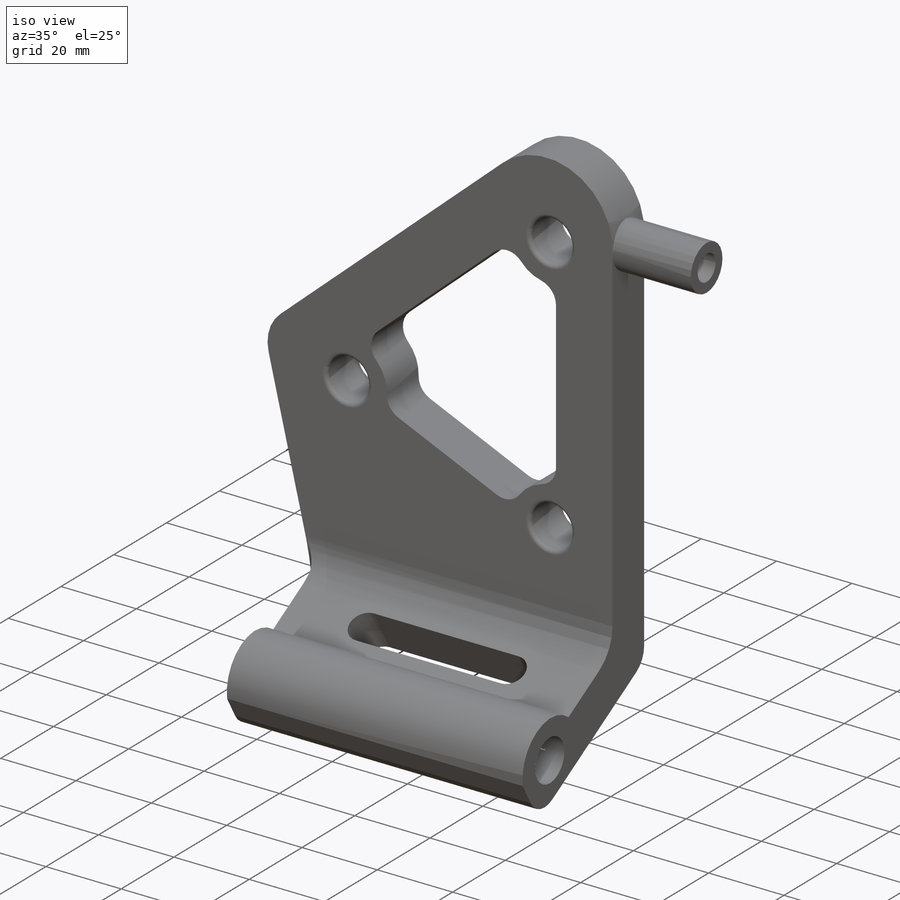
[diagram: iso view]
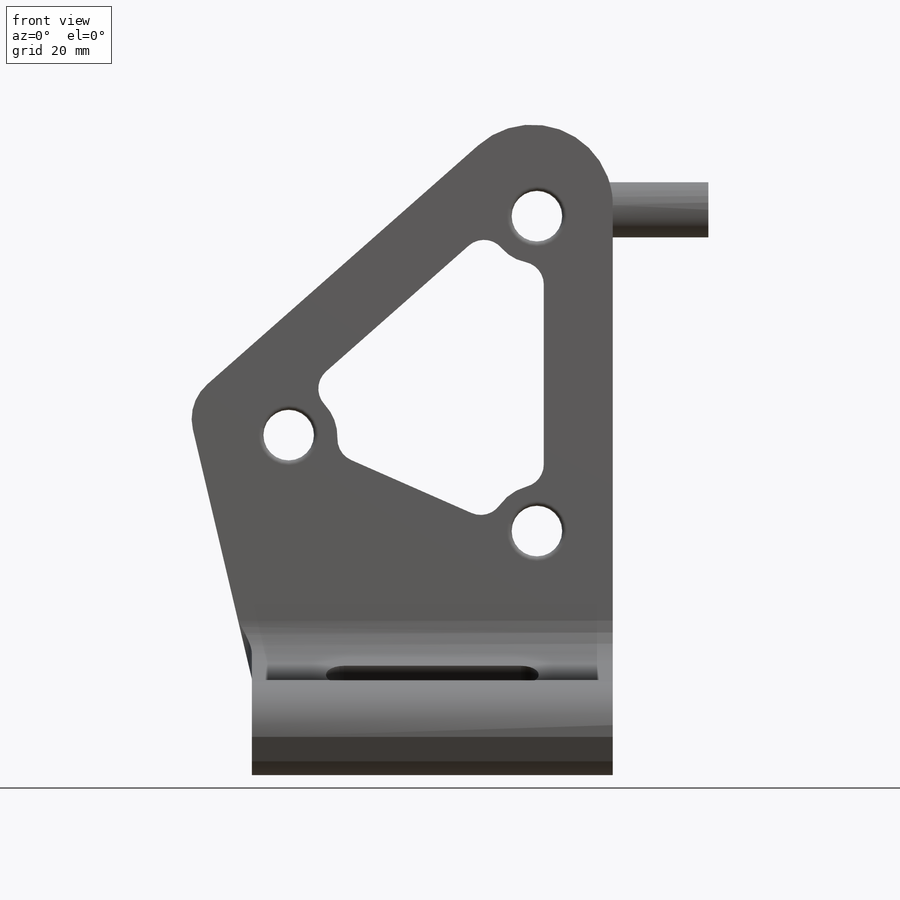
[diagram: front view]
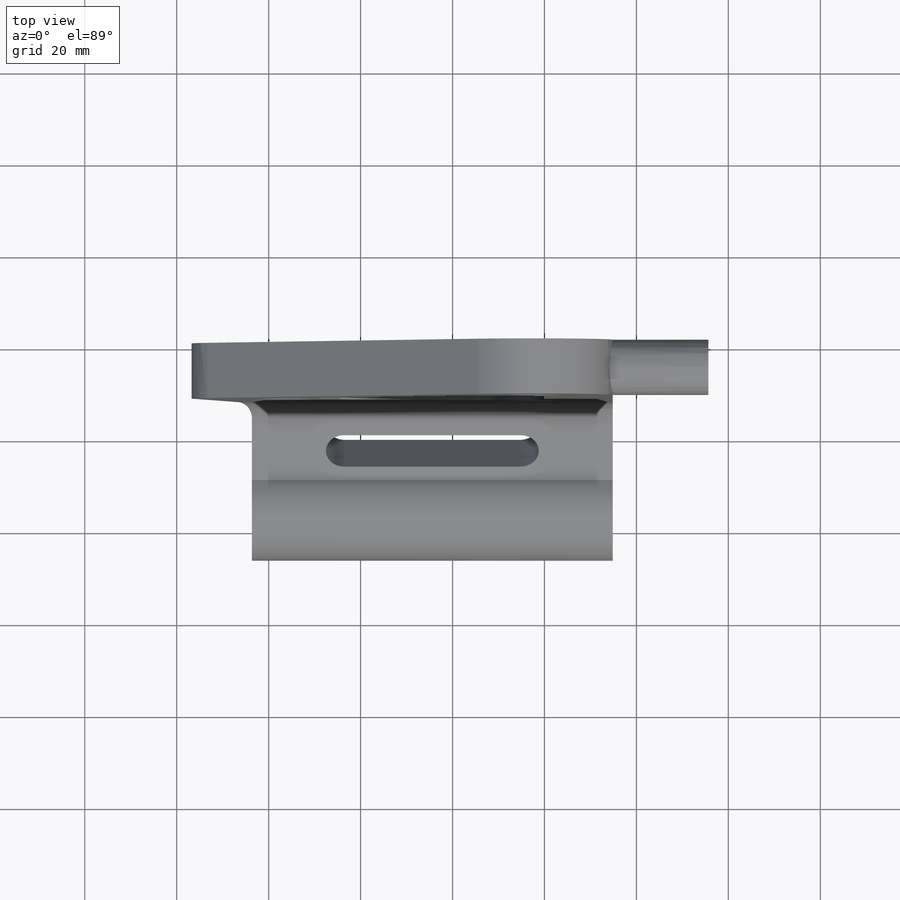
[diagram: top view]
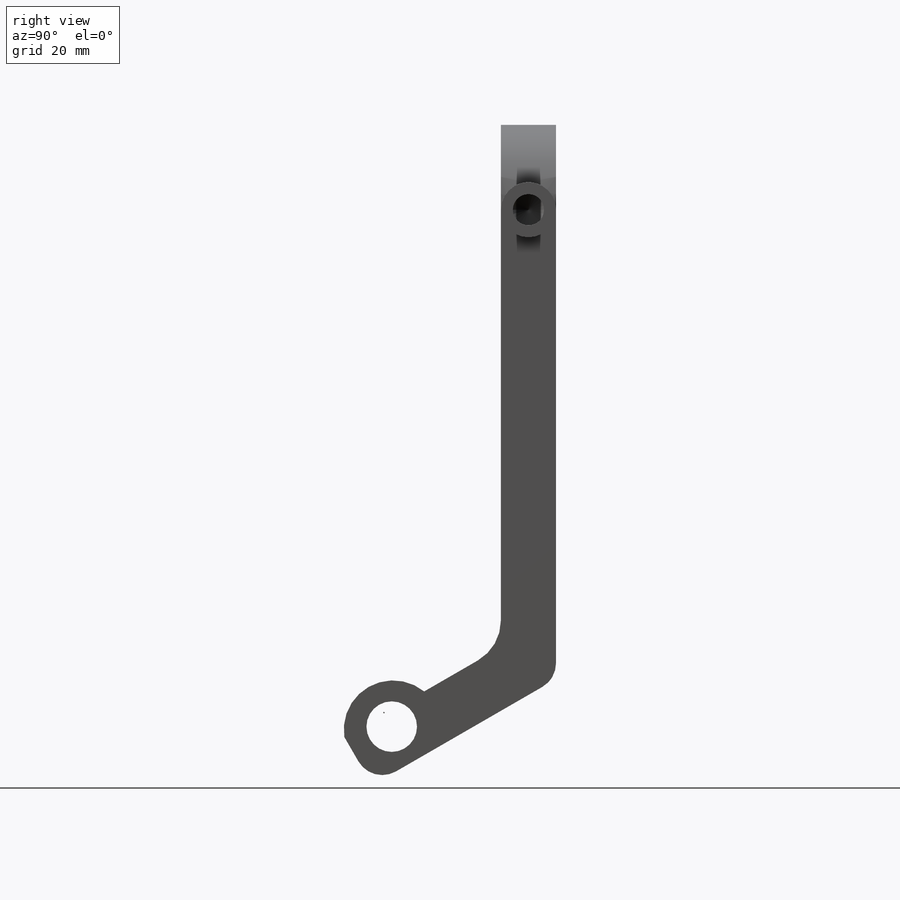
[diagram: right view]
SOLIDWORKS PART (.sldprt)
format: sldprt  version: not decoded by parser v0  size: 377,344 bytes
history: native  units: mm
features: sketch x7, fillet x7, plane x3, extrude x3, cut_extrude x2, material x1, hole x1 (+9 scaffold rows collapsed)
feature tree (33):
  scaffold x9  (default folders/planes/origin — collapsed)
  material  "Matériau <non spécifié>"
  plane  "Plan de face"
  plane  "Plan de dessus"
  plane  "Plan de droite"
  sketch  "Esquisse2"  dims[c1.D1=11.0mm c1.D2=11.0mm c1.D3=11.0mm c1.D6=11.0mm c1.D4=11.0mm c1.D13=10.0mm c1.D14=10.0mm c1.D25=11.0mm c2.D13=11.0mm c2.D4=63.0mm c2.D5=45.0mm c2.D6=59.5mm c2.D7=16.5mm c2.D8=16.5mm c2.D9=20.0mm c3.D4=72.0mm c3.D5=54.0mm c3.D6=68.5mm c3.D10=68.5mm c4.D6=68.5mm c4.D10=20.0mm c4.D11=20.0mm c4.D12=62.0mm c4.D13=60.0mm c5.D12=62.0mm c5.D13=65.0mm c5.D15=~50.061243mm c6.D15=~134.37563deg c7.D15=~123.488832mm c8.D15=90.0deg c8.D16=~102.68488mm c9.D15=~52.704197mm c10.D15=~179.411895deg c11.D15=15.0mm c11.D16=15.0mm c11.D17=15.0mm c11.D18=15.0mm c11.D19=10.0mm c11.D20=10.0mm c11.D21=10.0mm c11.D22=10.0mm c11.D23=10.0mm c11.D24=10.0mm c11.D12=62.0mm c11.D25=~32.180744mm c11.D13=~21.336963mm]
  extrude  "Boss.-Extru.1"  Depth=12mm
  fillet  "Congé6"  Radius=1mm
  sketch  "Esquisse4"  dims[c1.D7=11.0mm c1.D1=12.0mm c1.D2=35.0mm c1.D3=60.0mm c1.D4=~23.890634mm c2.D4=~174.456805deg c3.D4=~39.263191mm c4.D4=180.0deg c5.D4=~122.833249mm c6.D4=120.0deg c6.D2=~28.087021mm c7.D2=180.0deg c7.D4=~122.833249mm c8.D4=120.0deg c8.D5=40.0mm c8.D1=~122.833249mm c9.D1=240.0deg c9.D2=12.0mm c9.D3=40.0mm c9.D5=~29.855154mm c10.D2=~122.833249mm c11.D2=120.0deg c11.D4=11.0mm c12.D4=150.0deg c13.D4=~122.833249mm c13.D2=~122.833249mm c14.D2=120.0deg c14.D4=12.0mm c15.D2=~122.833249mm c16.D2=120.0deg c16.D5=~23.094011mm c17.D5=90.0deg c17.D6=~20.456458mm c18.D6=90.0deg c19.D6=~20.456458mm c20.D6=90.0deg c21.D6=20.0mm]
  extrude  "Boss.-Extru.5"  Depth=78.5mm
  sketch  "Esquisse6"  dims[c1.D1=11.0mm c1.D2=10.0mm c1.D3=~12.46648mm c2.D2=10.0mm]
  cut_extrude  "Enlèv. mat.-Extru.1"  Depth=78.5mm
  fillet  "Congé11"  Radius=6mm
  fillet  "Congé12"  Radius=6mm
  fillet  "Congé13"  Radius=1mm
  sketch  "Esquisse7"  dims[D1=12.0mm D2=13.0mm]
  extrude  "Boss.-Extru.6"  Depth=20.8mm
  hole  "Trou pour taraudage pour trou taraudé M8x1.251"  Diameter=6.8mm Depth=20mm
  sketch  "Esquisse11"  dims[D1=0.0mm]
  sketch  "Esquisse10"  dims[hole-wizard template sketch: 46 standard entries collapsed; hole parameters kept: c15.Diamètre du perçage=6.8mm c15.Profondeur du perçage=20.0mm c15.D3=~14.816244mm c15.Angle de pointe=118.0deg]
  fillet  "Congé14"  Radius=10mm
  fillet  "Congé18"  Radius=3mm
  fillet  "Congé19"  Radius=5mm
  sketch  "Esquisse12"  dims[D1=20.0mm D2=20.0mm]
  cut_extrude  "Enlèv. mat.-Extru.2"  [1 undecoded]
decode coverage: 19 of 20 modeling features carry decoded parameters
note: ~ marks probable driven/reference dimensions
note: 1 parameter value undecoded
note: suppression state not decoded; provenance and decode notes live in map.json
